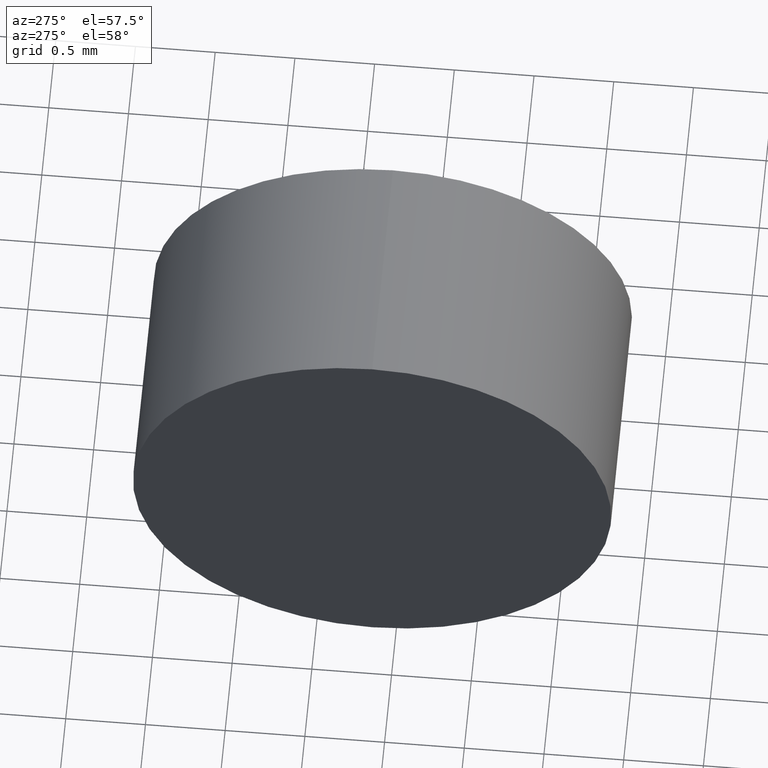
[diagram: clean part render]
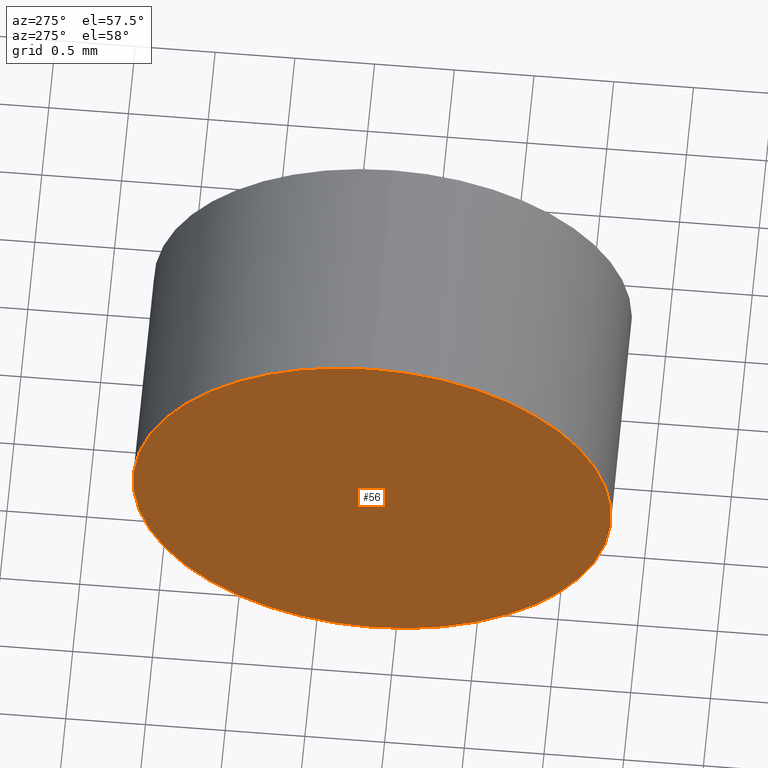
[diagram: same view with one face highlighted and labeled with its STEP entity id]
A machine part, auxiliary view. The second image highlights one B-rep face of the part: STEP entity #56.
In plain terms, the highlighted planar face has unit normal (1, 0, 0).
Its self-contained STEP definition (entity closure, byte-faithful):
#20 = DIRECTION ( 'NONE',  ( -1.000000000000000000, -0.0000000000000000000, -0.0000000000000000000 ) ) ;
#22 = DIRECTION ( 'NONE',  ( 0.0000000000000000000, 0.0000000000000000000, -1.000000000000000000 ) ) ;
#23 = PLANE ( 'NONE',  #47 ) ;
#41 = EDGE_CURVE ( 'NONE', #65, #160, #70, .T. ) ;
#43 = AXIS2_PLACEMENT_3D ( 'NONE', #80, #183, #66 ) ;
#45 = CARTESIAN_POINT ( 'NONE',  ( 475.7983291331472600, 73.14784035914851800, 0.0000000000000000000 ) ) ;
#46 = CARTESIAN_POINT ( 'NONE',  ( 475.7983291331472600, 73.14784035914851800, 0.0000000000000000000 ) ) ;
#47 = AXIS2_PLACEMENT_3D ( 'NONE', #46, #96, #22 ) ;
#56 = ADVANCED_FACE ( 'NONE', ( #146 ), #23, .F. ) ;
#58 = CIRCLE ( 'NONE', #43, 1.499999999984999600 ) ;
#65 = VERTEX_POINT ( 'NONE', #154 ) ;
#66 = DIRECTION ( 'NONE',  ( 0.0000000000000000000, 0.0000000000000000000, 1.000000000000000000 ) ) ;
#70 = CIRCLE ( 'NONE', #132, 1.499999999984999600 ) ;
#71 = ORIENTED_EDGE ( 'NONE', *, *, #41, .T. ) ;
#80 = CARTESIAN_POINT ( 'NONE',  ( 475.7983291331472600, 73.14784035914851800, 0.0000000000000000000 ) ) ;
#96 = DIRECTION ( 'NONE',  ( 1.000000000000000000, 0.0000000000000000000, 0.0000000000000000000 ) ) ;
#115 = EDGE_CURVE ( 'NONE', #160, #65, #58, .T. ) ;
#129 = EDGE_LOOP ( 'NONE', ( #138, #71 ) ) ;
#132 = AXIS2_PLACEMENT_3D ( 'NONE', #45, #20, #152 ) ;
#137 = CARTESIAN_POINT ( 'NONE',  ( 475.7983291331472600, 73.14784035914851800, 1.499999999984999600 ) ) ;
#138 = ORIENTED_EDGE ( 'NONE', *, *, #115, .T. ) ;
#146 = FACE_OUTER_BOUND ( 'NONE', #129, .T. ) ;
#152 = DIRECTION ( 'NONE',  ( 0.0000000000000000000, 0.0000000000000000000, 1.000000000000000000 ) ) ;
#154 = CARTESIAN_POINT ( 'NONE',  ( 475.7983291331472600, 73.14784035914851800, -1.499999999984999600 ) ) ;
#160 = VERTEX_POINT ( 'NONE', #137 ) ;
#183 = DIRECTION ( 'NONE',  ( -1.000000000000000000, -0.0000000000000000000, -0.0000000000000000000 ) ) ;